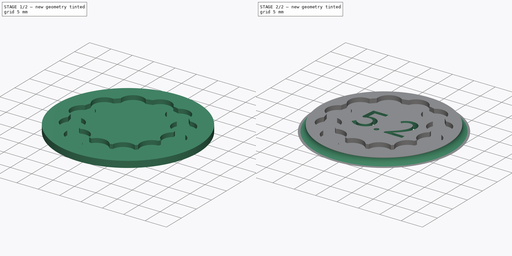
[diagram: build sequence overview — one tinted view per stage of 2, left to right]
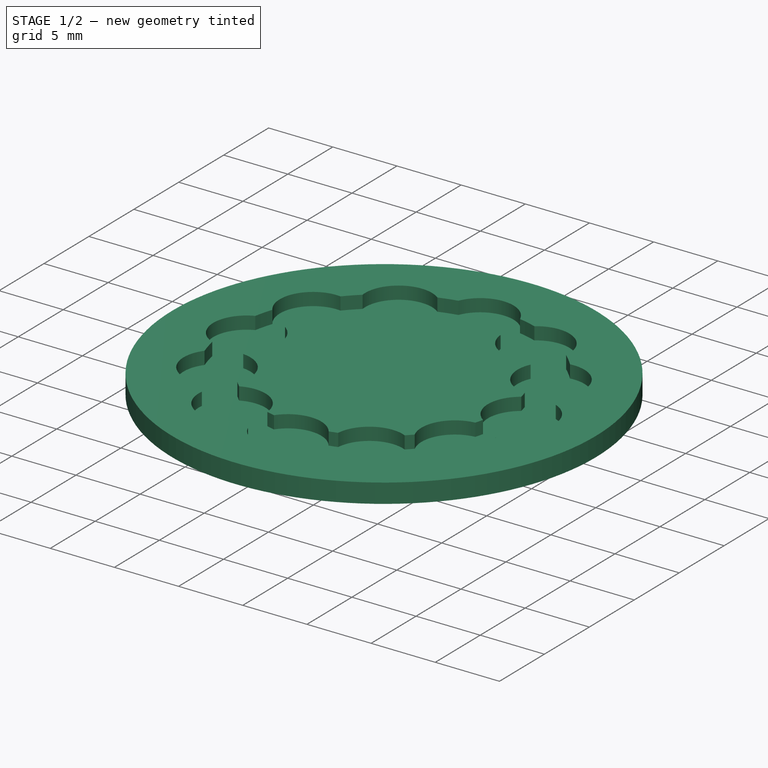
[diagram: stage 1 of 2 — iso view after this stage's code; geometry added in this stage tinted green]
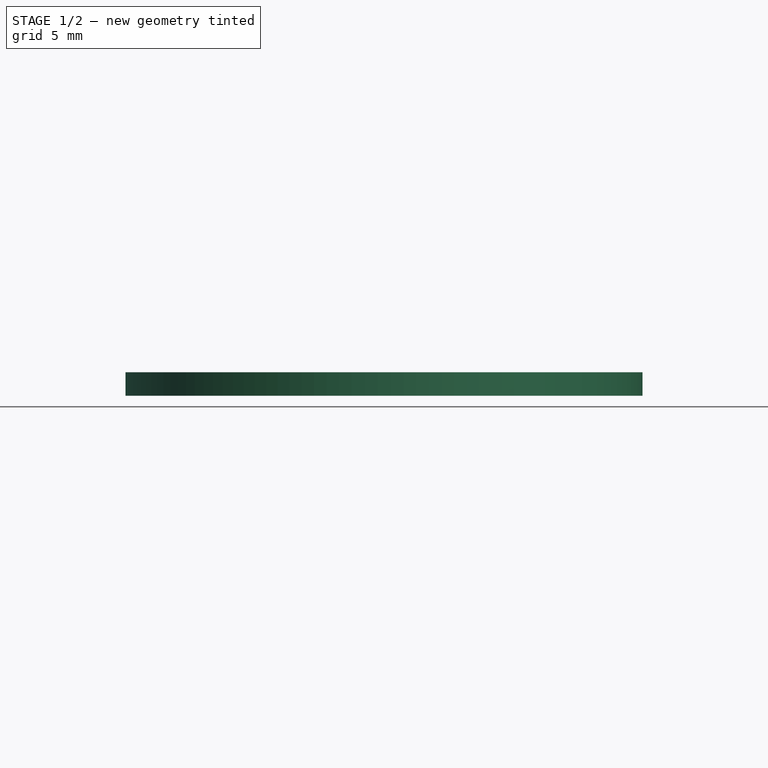
[diagram: stage 1 of 2 — front view after this stage's code; geometry added in this stage tinted green]
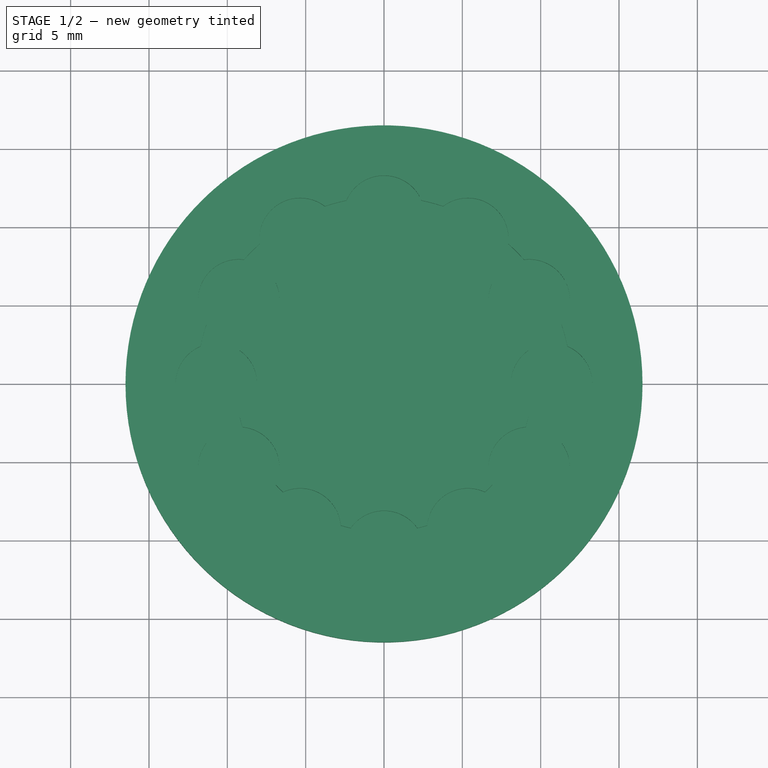
[diagram: stage 1 of 2 — top view after this stage's code; geometry added in this stage tinted green]
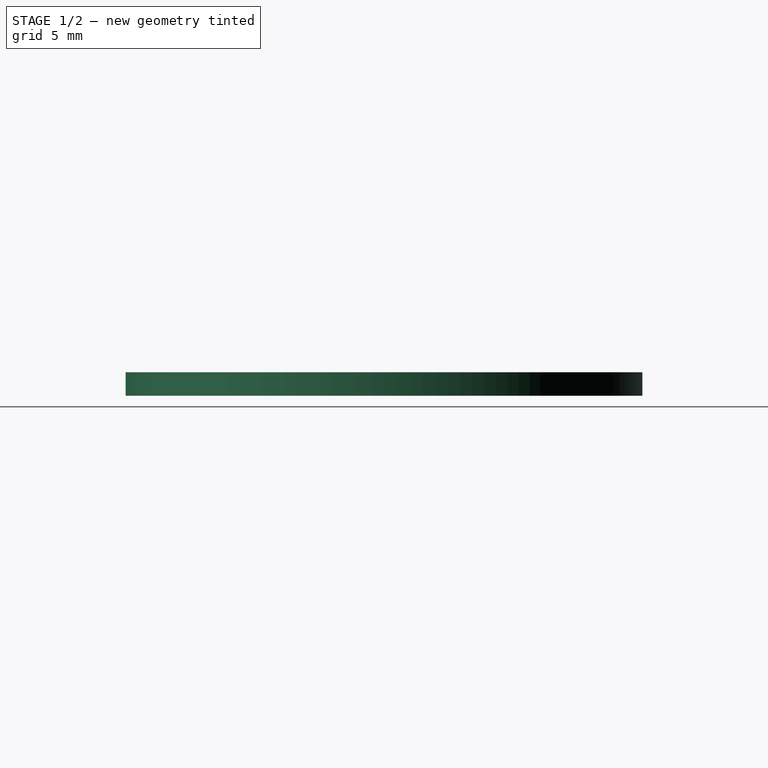
[diagram: stage 1 of 2 — right view after this stage's code; geometry added in this stage tinted green]
FCSTD DOCUMENT  (FreeCAD 1.0R39109 (Git))
Label: subel-blade
License: All rights reserved
LicenseURL: http://en.wikipedia.org/wiki/All_rights_reserved
objects: Sketcher::SketchObject×3, PartDesign::Pocket×2, PartDesign::Pad×1, PartDesign::Groove×1, Part::Part2DObjectPython×1, PartDesign::Body×1
note: 20 computed .brp shape members not serialized (recipe doc carries the construction recipe); baked Part::Feature solids carry a one-line shape summary decoded from their .brp

FEATURE [Sketcher::SketchObject] Sketch
  ArcFitTolerance = 1e-06
  AttachmentSupport = -> [XY_Plane]
  FullyConstrained = true
  MakeInternals = false
  MapMode = 5
  sketch-geometry (1):
    g0: Circle CenterX=0 CenterY=0 CenterZ=0 NormalX=0 NormalY=0 NormalZ=1 AngleXU=0 Radius=16.5
  constraints (2):
    c: Diameter(g0) = 33
    c: Coincident(g0,g-1)
FEATURE [PartDesign::Pad] Pad
  Direction = (0,0,1)
  Length = 1.5
  Length2 = 10
  Profile = -> Sketch
  ReferenceAxis = -> Sketch [N_Axis]
  Suppressed = false
  Type = 0
FEATURE [Sketcher::SketchObject] Sketch001
  ArcFitTolerance = 1e-06
  AttachmentSupport = -> [Pad]
  ExternalGeometry = -> [Pad]
  FullyConstrained = true
  MakeInternals = false
  MapMode = 5
  Placement = pos=(0,0,1.5) rot=(0,0,1;0rad)
  sketch-geometry (62):
    g0: ArcOfCircle CenterX=0 CenterY=10.7 CenterZ=0 NormalX=0 NormalY=0 NormalZ=1 AngleXU=0 Radius=2.6 StartAngle=0.397762 EndAngle=2.74383
    g1: ArcOfCircle CenterX=5.35 CenterY=9.26647 CenterZ=0 NormalX=0 NormalY=0 NormalZ=1 AngleXU=0 Radius=2.6 StartAngle=3.2296 EndAngle=5.14798
    g2: ArcOfCircle CenterX=9.26647 CenterY=5.35 CenterZ=0 NormalX=0 NormalY=0 NormalZ=1 AngleXU=0 Radius=2.6 StartAngle=2.706 EndAngle=4.62438
    g3: ArcOfCircle CenterX=10.7 CenterY=1.1e-15 CenterZ=0 NormalX=0 NormalY=0 NormalZ=1 AngleXU=0 Radius=2.6 StartAngle=2.1824 EndAngle=4.10078
    g4: ArcOfCircle CenterX=9.26647 CenterY=-5.35 CenterZ=0 NormalX=0 NormalY=0 NormalZ=1 AngleXU=0 Radius=2.6 StartAngle=1.6588 EndAngle=3.57719
    g5: ArcOfCircle CenterX=5.35 CenterY=-9.26647 CenterZ=0 NormalX=0 NormalY=0 NormalZ=1 AngleXU=0 Radius=2.6 StartAngle=1.1352 EndAngle=3.05359
    g6: ArcOfCircle CenterX=3.2e-15 CenterY=-10.7 CenterZ=0 NormalX=0 NormalY=0 NormalZ=1 AngleXU=0 Radius=2.6 StartAngle=0.611605 EndAngle=2.52999
    g7: ArcOfCircle CenterX=-5.35 CenterY=-9.26647 CenterZ=0 NormalX=0 NormalY=0 NormalZ=1 AngleXU=0 Radius=2.6 StartAngle=0.0880062 EndAngle=2.00639
    g8: ArcOfCircle CenterX=-9.26647 CenterY=-5.35 CenterZ=0 NormalX=0 NormalY=0 NormalZ=1 AngleXU=0 Radius=2.6 StartAngle=5.84759 EndAngle=7.76598
    g9: ArcOfCircle CenterX=-10.7 CenterY=-7.8e-15 CenterZ=0 NormalX=0 NormalY=0 NormalZ=1 AngleXU=0 Radius=2.6 StartAngle=5.32399 EndAngle=7.24238
    g10: ArcOfCircle CenterX=-9.26647 CenterY=5.35 CenterZ=0 NormalX=0 NormalY=0 NormalZ=1 AngleXU=0 Radius=2.6 StartAngle=4.8004 EndAngle=6.71878
    g11: ArcOfCircle CenterX=-5.35 CenterY=9.26647 CenterZ=0 NormalX=0 NormalY=0 NormalZ=1 AngleXU=0 Radius=2.6 StartAngle=4.2768 EndAngle=6.19518
    g12: LineSegment [constr] StartX=5.35 StartY=9.26647 StartZ=0 EndX=0 EndY=0 EndZ=0
    g13: LineSegment [constr] StartX=9.26647 StartY=5.35 StartZ=0 EndX=0 EndY=0 EndZ=0
    g14: LineSegment [constr] StartX=10.7 StartY=1.1e-15 StartZ=0 EndX=0 EndY=0 EndZ=0
    g15: LineSegment [constr] StartX=9.26647 StartY=-5.35 StartZ=0 EndX=0 EndY=0 EndZ=0
    g16: ArcOfCircle CenterX=5.35 CenterY=9.26647 CenterZ=0 NormalX=0 NormalY=0 NormalZ=1 AngleXU=0 Radius=2.6 StartAngle=6.15735 EndAngle=8.50342
    g17: LineSegment [constr] StartX=5.35 StartY=-9.26647 StartZ=0 EndX=0 EndY=0 EndZ=0
    g18: LineSegment [constr] StartX=3.2e-15 StartY=-10.7 StartZ=0 EndX=0 EndY=0 EndZ=0
    g19: LineSegment [constr] StartX=-5.35 StartY=-9.26647 StartZ=0 EndX=0 EndY=0 EndZ=0
    g20: LineSegment [constr] StartX=-9.26647 StartY=-5.35 StartZ=0 EndX=0 EndY=0 EndZ=0
    g21: LineSegment [constr] StartX=-10.7 StartY=-7.8e-15 StartZ=0 EndX=0 EndY=0 EndZ=0
    g22: LineSegment [constr] StartX=-9.26647 StartY=5.35 StartZ=0 EndX=0 EndY=0 EndZ=0
    g23: LineSegment [constr] StartX=-5.35 StartY=9.26647 StartZ=0 EndX=0 EndY=0 EndZ=0
    g24: ArcOfCircle CenterX=9.26647 CenterY=5.35 CenterZ=0 NormalX=0 NormalY=0 NormalZ=1 AngleXU=0 Radius=2.6 StartAngle=5.63375 EndAngle=7.97982
    g25: ArcOfCircle CenterX=10.7 CenterY=1.1e-15 CenterZ=0 NormalX=0 NormalY=0 NormalZ=1 AngleXU=0 Radius=2.6 StartAngle=5.11015 EndAngle=7.45622
    g26: ArcOfCircle CenterX=9.26647 CenterY=-5.35 CenterZ=0 NormalX=0 NormalY=0 NormalZ=1 AngleXU=0 Radius=2.6 StartAngle=4.58655 EndAngle=6.93262
    g27: ArcOfCircle CenterX=5.35 CenterY=-9.26647 CenterZ=0 NormalX=0 NormalY=0 NormalZ=1 AngleXU=0 Radius=2.6 StartAngle=4.06295 EndAngle=6.40902
    g28: ArcOfCircle CenterX=3.2e-15 CenterY=-10.7 CenterZ=0 NormalX=0 NormalY=0 NormalZ=1 AngleXU=0 Radius=2.6 StartAngle=3.53935 EndAngle=5.88542
    g29: ArcOfCircle CenterX=-5.35 CenterY=-9.26647 CenterZ=0 NormalX=0 NormalY=0 NormalZ=1 AngleXU=0 Radius=2.6 StartAngle=3.01576 EndAngle=5.36182
    g30: ArcOfCircle CenterX=-9.26647 CenterY=-5.35 CenterZ=0 NormalX=0 NormalY=0 NormalZ=1 AngleXU=0 Radius=2.6 StartAngle=2.49216 EndAngle=4.83823
    g31: ArcOfCircle CenterX=-10.7 CenterY=-7.8e-15 CenterZ=0 NormalX=0 NormalY=0 NormalZ=1 AngleXU=0 Radius=2.6 StartAngle=1.96856 EndAngle=4.31463
    g32: ArcOfCircle CenterX=-9.26647 CenterY=5.35 CenterZ=0 NormalX=0 NormalY=0 NormalZ=1 AngleXU=0 Radius=2.6 StartAngle=1.44496 EndAngle=3.79103
    g33: ArcOfCircle CenterX=0 CenterY=10.7 CenterZ=0 NormalX=0 NormalY=0 NormalZ=1 AngleXU=0 Radius=2.6 StartAngle=3.7532 EndAngle=5.67158
    g34: ArcOfCircle CenterX=-5.35 CenterY=9.26647 CenterZ=0 NormalX=0 NormalY=0 NormalZ=1 AngleXU=0 Radius=2.6 StartAngle=0.921361 EndAngle=3.26743
    g35: Circle [constr] CenterX=0 CenterY=0 CenterZ=0 NormalX=0 NormalY=0 NormalZ=1 AngleXU=0 Radius=10.7
    g36: ArcOfCircle CenterX=0 CenterY=0 CenterZ=0 NormalX=0 NormalY=0 NormalZ=1 AngleXU=0 Radius=11.95 StartAngle=5.43795 EndAngle=5.55763
    g37: ArcOfCircle CenterX=0 CenterY=0 CenterZ=0 NormalX=0 NormalY=0 NormalZ=1 AngleXU=0 Radius=9.45 StartAngle=5.4632 EndAngle=5.53238
    g38: ArcOfCircle CenterX=0 CenterY=0 CenterZ=0 NormalX=0 NormalY=0 NormalZ=1 AngleXU=0 Radius=11.95 StartAngle=2.29635 EndAngle=2.41604
    g39: ArcOfCircle CenterX=0 CenterY=0 CenterZ=0 NormalX=0 NormalY=0 NormalZ=1 AngleXU=0 Radius=11.95 StartAngle=3.34355 EndAngle=3.46323
    g40: ArcOfCircle CenterX=0 CenterY=0 CenterZ=0 NormalX=0 NormalY=0 NormalZ=1 AngleXU=0 Radius=11.95 StartAngle=3.86715 EndAngle=3.98683
    g41: ArcOfCircle CenterX=0 CenterY=0 CenterZ=0 NormalX=0 NormalY=0 NormalZ=1 AngleXU=0 Radius=11.95 StartAngle=4.39075 EndAngle=4.51043
    g42: ArcOfCircle CenterX=0 CenterY=0 CenterZ=0 NormalX=0 NormalY=0 NormalZ=1 AngleXU=0 Radius=11.95 StartAngle=4.91435 EndAngle=5.03403
    g43: ArcOfCircle CenterX=0 CenterY=0 CenterZ=0 NormalX=0 NormalY=0 NormalZ=1 AngleXU=0 Radius=9.45 StartAngle=3.3688 EndAngle=3.43798
    g44: ArcOfCircle CenterX=0 CenterY=0 CenterZ=0 NormalX=0 NormalY=0 NormalZ=1 AngleXU=0 Radius=9.45 StartAngle=2.8452 EndAngle=2.91438
    g45: ArcOfCircle CenterX=0 CenterY=0 CenterZ=0 NormalX=0 NormalY=0 NormalZ=1 AngleXU=0 Radius=9.45 StartAngle=2.3216 EndAngle=2.39079
    g46: ArcOfCircle CenterX=0 CenterY=0 CenterZ=0 NormalX=0 NormalY=0 NormalZ=1 AngleXU=0 Radius=9.45 StartAngle=1.798 EndAngle=1.86719
    g47: ArcOfCircle CenterX=0 CenterY=0 CenterZ=0 NormalX=0 NormalY=0 NormalZ=1 AngleXU=0 Radius=11.95 StartAngle=1.77275 EndAngle=1.89244
    g48: ArcOfCircle CenterX=0 CenterY=0 CenterZ=0 NormalX=0 NormalY=0 NormalZ=1 AngleXU=0 Radius=11.95 StartAngle=1.24915 EndAngle=1.36884
    g49: ArcOfCircle CenterX=0 CenterY=0 CenterZ=0 NormalX=0 NormalY=0 NormalZ=1 AngleXU=0 Radius=9.45 StartAngle=1.27441 EndAngle=1.34359
    g50: ArcOfCircle CenterX=0 CenterY=0 CenterZ=0 NormalX=0 NormalY=0 NormalZ=1 AngleXU=0 Radius=9.45 StartAngle=0.750807 EndAngle=0.819989
    g51: ArcOfCircle CenterX=0 CenterY=0 CenterZ=0 NormalX=0 NormalY=0 NormalZ=1 AngleXU=0 Radius=11.95 StartAngle=0.725556 EndAngle=0.84524
    g52: ArcOfCircle CenterX=0 CenterY=0 CenterZ=0 NormalX=0 NormalY=0 NormalZ=1 AngleXU=0 Radius=9.45 StartAngle=0.227208 EndAngle=0.296391
    g53: ArcOfCircle CenterX=0 CenterY=0 CenterZ=0 NormalX=0 NormalY=0 NormalZ=1 AngleXU=0 Radius=9.45 StartAngle=5.98679 EndAngle=6.05598
    g54: ArcOfCircle CenterX=0 CenterY=0 CenterZ=0 NormalX=0 NormalY=0 NormalZ=1 AngleXU=0 Radius=11.95 StartAngle=0.201957 EndAngle=0.321641
    g55: ArcOfCircle CenterX=0 CenterY=0 CenterZ=0 NormalX=0 NormalY=0 NormalZ=1 AngleXU=0 Radius=11.95 StartAngle=5.96154 EndAngle=6.08123
    g56: ArcOfCircle CenterX=0 CenterY=0 CenterZ=0 NormalX=0 NormalY=0 NormalZ=1 AngleXU=0 Radius=9.45 StartAngle=4.9396 EndAngle=5.00878
    g57: ArcOfCircle CenterX=0 CenterY=0 CenterZ=0 NormalX=0 NormalY=0 NormalZ=1 AngleXU=0 Radius=9.45 StartAngle=4.416 EndAngle=4.48518
    g58: ArcOfCircle CenterX=0 CenterY=0 CenterZ=0 NormalX=0 NormalY=0 NormalZ=1 AngleXU=0 Radius=9.45 StartAngle=3.8924 EndAngle=3.96158
    g59: ArcOfCircle CenterX=0 CenterY=0 CenterZ=0 NormalX=0 NormalY=0 NormalZ=1 AngleXU=0 Radius=11.95 StartAngle=2.81995 EndAngle=2.93964
    g60: LineSegment [constr] StartX=-13.3 StartY=9.76524 StartZ=0 EndX=-13.3 EndY=-9.76524 EndZ=0
    g61: LineSegment [constr] StartX=13.3 StartY=9.76524 StartZ=0 EndX=13.3 EndY=-9.76524 EndZ=0
  constraints (211):
    c: Diameter(g0) = 5.2
    c: PointOnObject(g0,g-2)
    c: Equal(g0,g1)
    c: Equal(g1,g2)
    c: Equal(g2,g3)
    c: Equal(g3,g4)
    c: Equal(g4,g5)
    c: Equal(g5,g6)
    c: Equal(g6,g7)
    c: Equal(g7,g8)
    c: Equal(g8,g9)
    c: Equal(g9,g10)
    c: Equal(g10,g11)
    c: Coincident(g12,g1)
    c: Coincident(g13,g2)
    c: Coincident(g14,g3)
    c: Coincident(g15,g4)
    c: Angle(g12,g-2) = 0.523599
    c: Angle(g13,g12) = 0.523599
    c: Angle(g14,g13) = 0.523599
    c: Angle(g15,g14) = 0.523599
    c: Equal(g1,g16)
    c: Coincident(g1,g16)
    c: Coincident(g17,g5)
    c: Coincident(g18,g6)
    c: Coincident(g19,g7)
    c: Coincident(g20,g8)
    c: Coincident(g21,g9)
    c: Coincident(g22,g10)
    c: Coincident(g23,g11)
    c: Angle(g-2,g23) = 0.523599
    c: Angle(g22,g21) = 0.523599
    c: Angle(g21,g20) = 0.523599
    c: Angle(g20,g19) = 0.523599
    c: Angle(g19,g18) = 0.523599
    c: Angle(g18,g17) = 0.523599
    c: Angle(g17,g15) = 0.523599
    c: Equal(g2,g24)
    c: Coincident(g2,g24)
    c: Equal(g3,g25)
    c: Coincident(g3,g25)
    c: Equal(g4,g26)
    c: Coincident(g4,g26)
    c: Equal(g5,g27)
    c: Coincident(g5,g27)
    c: Equal(g6,g28)
    c: Coincident(g6,g28)
    c: Equal(g7,g29)
    c: Coincident(g7,g29)
    c: Equal(g8,g30)
    c: Coincident(g8,g30)
    c: Equal(g9,g31)
    c: Coincident(g9,g31)
    c: Equal(g10,g32)
    c: Coincident(g10,g32)
    c: Equal(g0,g33)
    c: Coincident(g0,g33)
    c: Equal(g11,g34)
    c: Coincident(g11,g34)
    c: PointOnObject(g4,g35)
    c: Diameter(g35) = 21.4
    c: Coincident(g12,g13)
    c: Coincident(g12,g14)
    c: Coincident(g12,g15)
    c: Coincident(g12,g17)
    c: Coincident(g12,g18)
    c: Coincident(g12,g19)
    c: Coincident(g12,g20)
    c: Coincident(g12,g21)
    c: Coincident(g12,g22)
    c: Coincident(g12,g23)
    c: Coincident(g12,g-3)
    c: PointOnObject(g3,g35)
    c: PointOnObject(g2,g35)
    c: PointOnObject(g1,g35)
    c: PointOnObject(g0,g35)
    c: PointOnObject(g11,g35)
    c: PointOnObject(g10,g35)
    c: PointOnObject(g9,g35)
    c: PointOnObject(g8,g35)
    c: PointOnObject(g7,g35)
    c: PointOnObject(g6,g35)
    c: PointOnObject(g5,g35)
    c: Coincident(g35,g12)
    c: Coincident(g36,g12)
    c: Coincident(g37,g12)
    c: Distance(g36,g37) = 2.5
    c: PointOnObject(g28,g42)
    c: PointOnObject(g26,g55)
    c: PointOnObject(g25,g54)
    c: PointOnObject(g24,g51)
    c: PointOnObject(g29,g41)
    c: PointOnObject(g30,g40)
    c: PointOnObject(g31,g39)
    c: PointOnObject(g32,g59)
    c: PointOnObject(g34,g38)
    c: PointOnObject(g0,g47)
    c: PointOnObject(g16,g48)
    c: PointOnObject(g1,g49)
    c: PointOnObject(g2,g50)
    c: PointOnObject(g3,g52)
    c: PointOnObject(g4,g53)
    c: PointOnObject(g6,g56)
    c: PointOnObject(g7,g57)
    c: PointOnObject(g8,g58)
    c: PointOnObject(g9,g43)
    c: PointOnObject(g10,g44)
    c: PointOnObject(g11,g45)
    c: PointOnObject(g33,g46)
    c: Distance(g35,g37) = 1.25
    c: Coincident(g42,g27)
    c: Coincident(g36,g27)
    c: Coincident(g56,g5)
    c: Coincident(g37,g5)
    c: Equal(g36,g38)
    c: Coincident(g47,g34)
    c: PointOnObject(g38,g34)
    c: Coincident(g36,g38)
    c: Equal(g38,g39)
    c: Coincident(g59,g31)
    c: PointOnObject(g39,g31)
    c: Coincident(g38,g39)
    c: Equal(g39,g40)
    c: Coincident(g39,g30)
    c: PointOnObject(g40,g30)
    c: Coincident(g39,g40)
    c: Equal(g40,g41)
    c: Coincident(g40,g29)
    c: PointOnObject(g41,g29)
    c: Coincident(g40,g41)
    c: Equal(g41,g42)
    c: Coincident(g41,g28)
    c: PointOnObject(g42,g28)
    c: Coincident(g41,g42)
    c: Equal(g37,g43)
    c: PointOnObject(g43,g9)
    c: Coincident(g37,g43)
    c: Coincident(g44,g9)
    c: Equal(g37,g44)
    c: PointOnObject(g44,g10)
    c: Coincident(g37,g44)
    c: Coincident(g45,g10)
    c: Equal(g37,g45)
    c: PointOnObject(g45,g11)
    c: Coincident(g37,g45)
    c: Coincident(g46,g11)
    c: Equal(g37,g46)
    c: Coincident(g49,g33)
    c: PointOnObject(g46,g33)
    c: Coincident(g37,g46)
    c: Equal(g36,g47)
    c: Coincident(g48,g0)
    c: PointOnObject(g47,g0)
    c: Coincident(g36,g47)
    c: Equal(g36,g48)
    c: Coincident(g51,g16)
    c: PointOnObject(g48,g16)
    c: Coincident(g36,g48)
    c: Equal(g37,g49)
    c: PointOnObject(g49,g1)
    c: Coincident(g37,g49)
    c: Coincident(g50,g1)
    c: Equal(g37,g50)
    c: PointOnObject(g50,g2)
    c: Coincident(g37,g50)
    c: Coincident(g52,g2)
    c: Equal(g36,g51)
    c: Coincident(g54,g24)
    c: PointOnObject(g51,g24)
    c: Coincident(g36,g51)
    c: Equal(g37,g52)
    c: PointOnObject(g52,g3)
    c: Coincident(g37,g52)
    c: Coincident(g53,g3)
    c: Equal(g37,g53)
    c: PointOnObject(g53,g4)
    c: Coincident(g37,g53)
    c: Coincident(g37,g4)
    c: Equal(g36,g54)
    c: Coincident(g55,g25)
    c: PointOnObject(g54,g25)
    c: Coincident(g36,g54)
    c: Equal(g36,g55)
    c: Coincident(g36,g26)
    c: PointOnObject(g55,g26)
    c: Coincident(g36,g55)
    c: Equal(g43,g56)
    c: PointOnObject(g56,g6)
    c: Coincident(g43,g56)
    c: Coincident(g57,g6)
    c: Equal(g43,g57)
    c: PointOnObject(g57,g7)
    c: Coincident(g43,g57)
    c: Coincident(g58,g7)
    c: Equal(g43,g58)
    c: PointOnObject(g58,g8)
    c: Coincident(g43,g58)
    c: Coincident(g43,g8)
    c: Equal(g38,g59)
    c: Coincident(g38,g32)
    c: PointOnObject(g59,g32)
    c: Coincident(g38,g59)
    c: Vertical(g60)
    c: Vertical(g61)
    c: PointOnObject(g60,g-3)
    c: PointOnObject(g60,g-3)
    c: Tangent(g31,g60)
    c: PointOnObject(g61,g-3)
    c: PointOnObject(g61,g-3)
    c: Tangent(g25,g61)
    c: Distance(g61,g60) = 26.6
FEATURE [PartDesign::Pocket] Pocket
  BaseFeature = -> Pad
  Direction = (0,0,-1)
  Length = 0
  Length2 = 5
  Offset = -0.5
  Profile = -> Sketch001
  ReferenceAxis = -> Sketch001 [N_Axis]
  Suppressed = false
  Type = 3
  UpToFace = -> Pad [Face2]
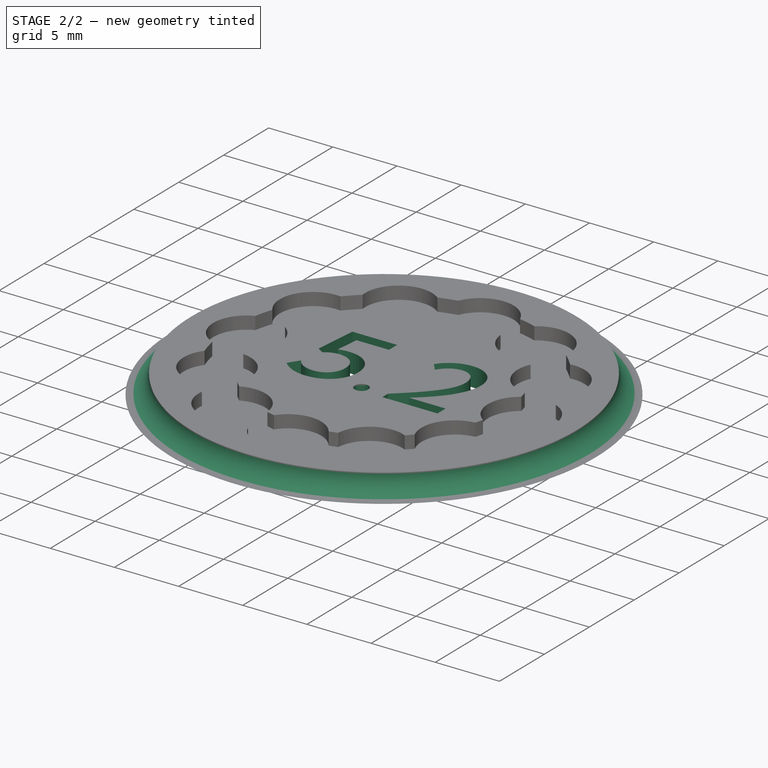
[diagram: stage 2 of 2 — iso view after this stage's code; geometry added in this stage tinted green]
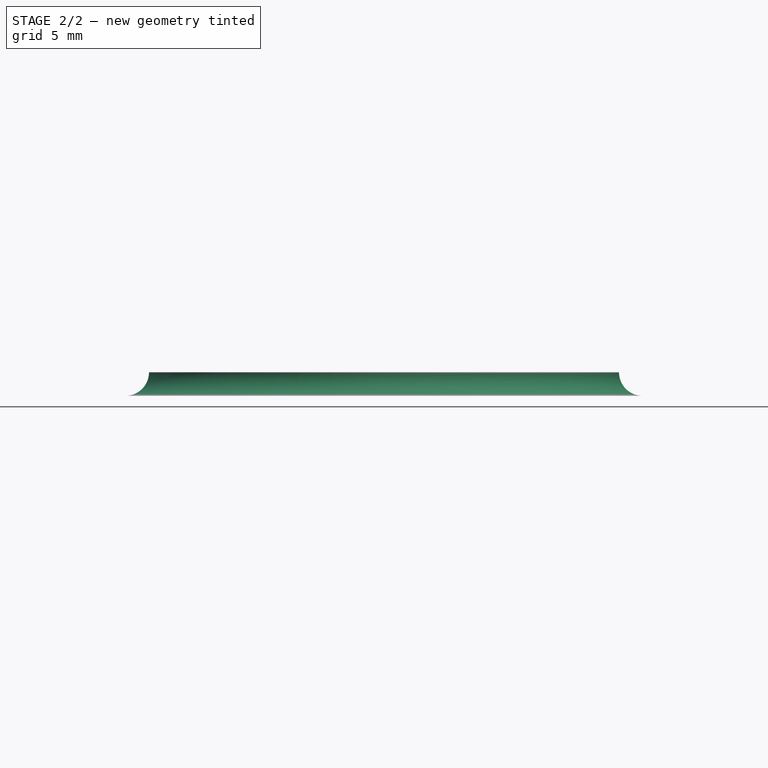
[diagram: stage 2 of 2 — front view after this stage's code; geometry added in this stage tinted green]
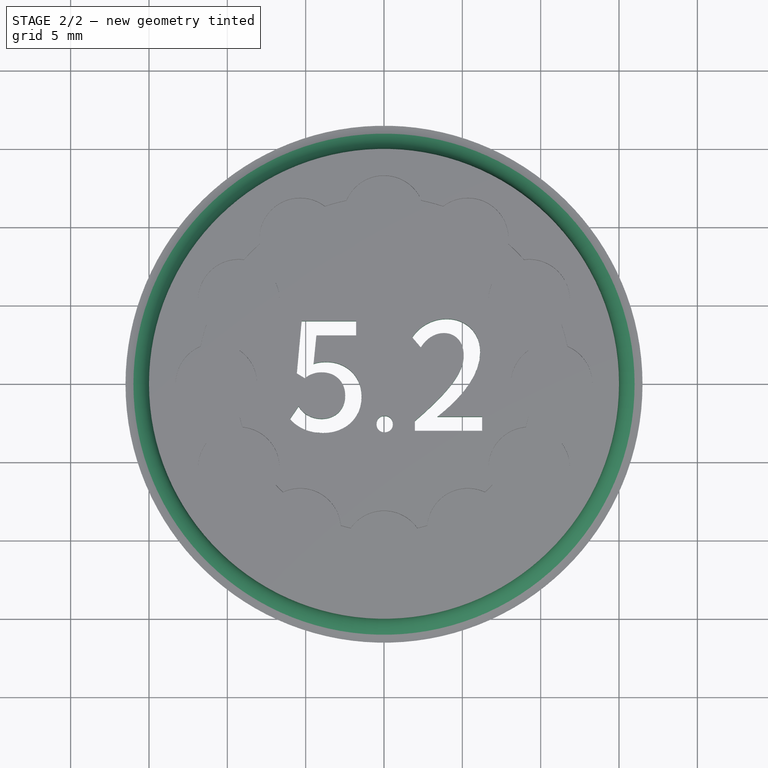
[diagram: stage 2 of 2 — top view after this stage's code; geometry added in this stage tinted green]
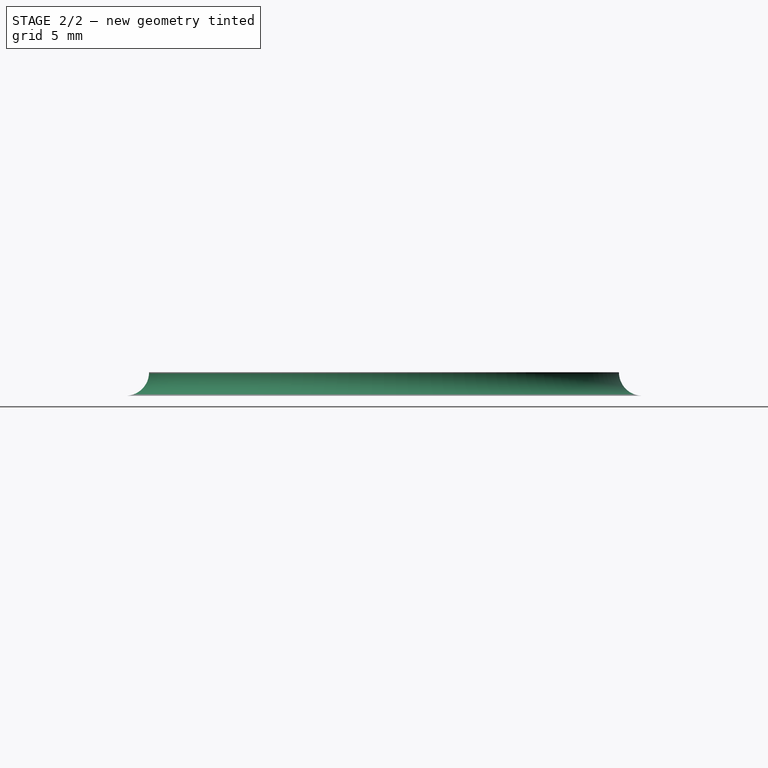
[diagram: stage 2 of 2 — right view after this stage's code; geometry added in this stage tinted green]
FEATURE [Sketcher::SketchObject] Sketch002
  ArcFitTolerance = 1e-06
  AttachmentSupport = -> [XZ_Plane]
  ExternalGeometry = -> [Pocket]
  FullyConstrained = true
  MakeInternals = false
  MapMode = 5
  Placement = pos=(0,0,0) rot=(1,0,0;1.5708rad)
  sketch-geometry (4):
    g0: Circle CenterX=16.5 CenterY=1.5 CenterZ=0 NormalX=0 NormalY=0 NormalZ=1 AngleXU=0 Radius=1.5
    g1: LineSegment [constr] StartX=-15 StartY=1.5 StartZ=0 EndX=15 EndY=1.5 EndZ=0
    g2: LineSegment [constr] StartX=0 StartY=0 StartZ=0 EndX=-15 EndY=1.5 EndZ=0
    g3: LineSegment [constr] StartX=0 StartY=0 StartZ=0 EndX=15 EndY=1.5 EndZ=0
  constraints (11):
    c: PointOnObject(g1,g-4)
    c: PointOnObject(g1,g-4)
    c: DistanceX(g1,g1) = 30
    c: Coincident(g2,g-1)
    c: Coincident(g2,g1)
    c: Coincident(g3,g2)
    c: Coincident(g3,g1)
    c: Equal(g3,g2)
    c: Radius(g0) = 1.5
    c: PointOnObject(g1,g0)
    c: Tangent(g-1,g0)
FEATURE [PartDesign::Groove] Groove
  Angle = 360
  Angle2 = 60
  Axis = (0,2e-16,1)
  Base = (0,0,0)
  BaseFeature = -> Pocket
  Profile = -> Sketch002
  ReferenceAxis = -> Sketch002 [V_Axis]
  Suppressed = false
  Type = 0
FEATURE [Part::Part2DObjectPython] ShapeString  # Draft 2D object (typed FeaturePython)
  AttachmentOffset = pos=(-6,-3,0) rot=(0,0,1;0rad)
  AttachmentSupport = -> [Groove]
  FontFile = <path>
  Fuse = false
  Justification = 6
  JustificationReference = 0
  KeepLeftMargin = false
  MakeFace = true
  MapMode = 5
  ObliqueAngle = 0
  Placement = pos=(-6,-3,1.5) rot=(0,0,1;0rad)
  ScaleToSize = true
  Size = 7
  String = 5.2
  Tracking = 0
FEATURE [PartDesign::Pocket] Pocket001
  BaseFeature = -> Groove
  Direction = (0,0,-1)
  Length = 5
  Length2 = 5
  Profile = -> ShapeString
  ReferenceAxis = -> ShapeString [N_Axis]
  Suppressed = false
  Type = 0
FEATURE [PartDesign::Body] Body
  AllowCompound = false
  Group = -> [Sketch,Pad,Sketch001,Pocket,Sketch002,Groove,ShapeString,Pocket001]
  Origin = -> Origin
  Tip = -> Pocket001
note: 1 file-system path scrubbed to <path> (originals preserved in the JSON sidecar)
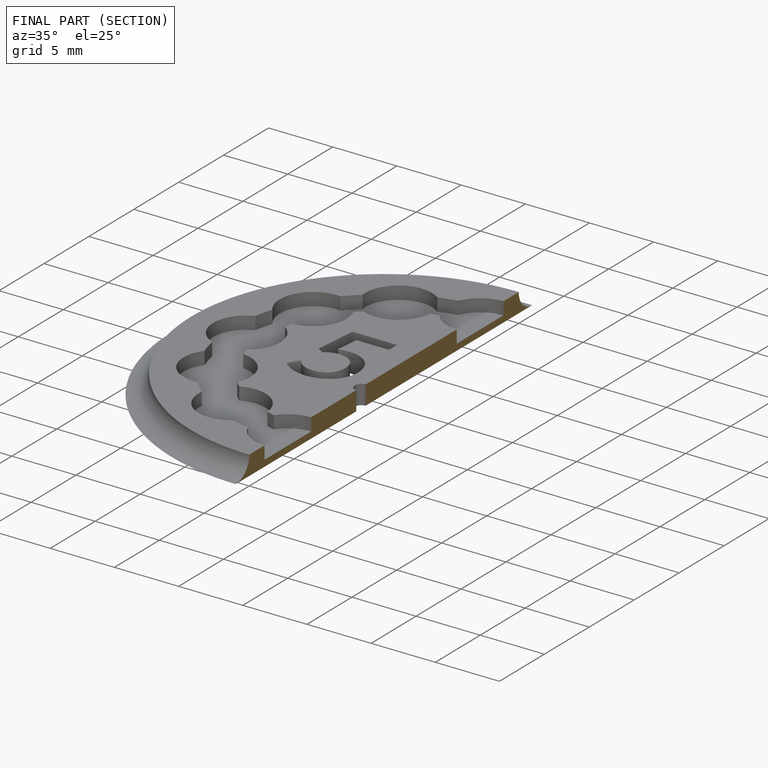
[diagram: finished part — half-section view (interior)]
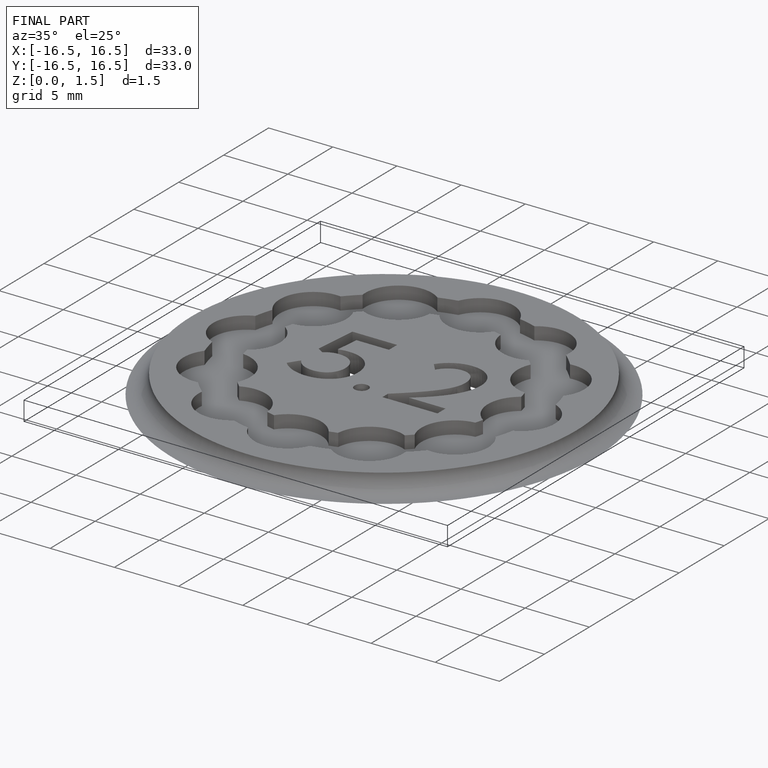
[diagram: finished part — iso view with bounding-box wireframe]
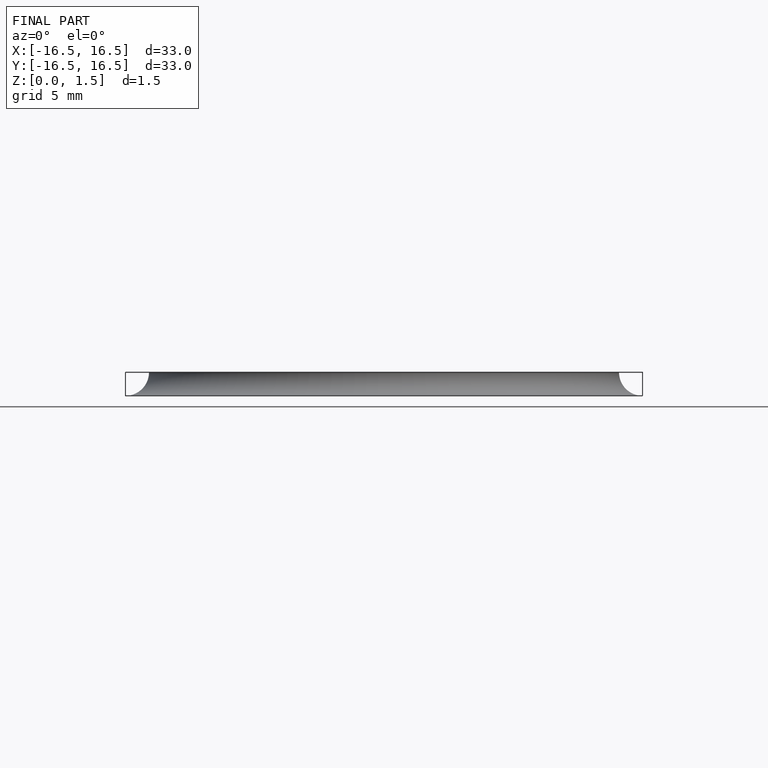
[diagram: finished part — front view with bounding-box wireframe]
